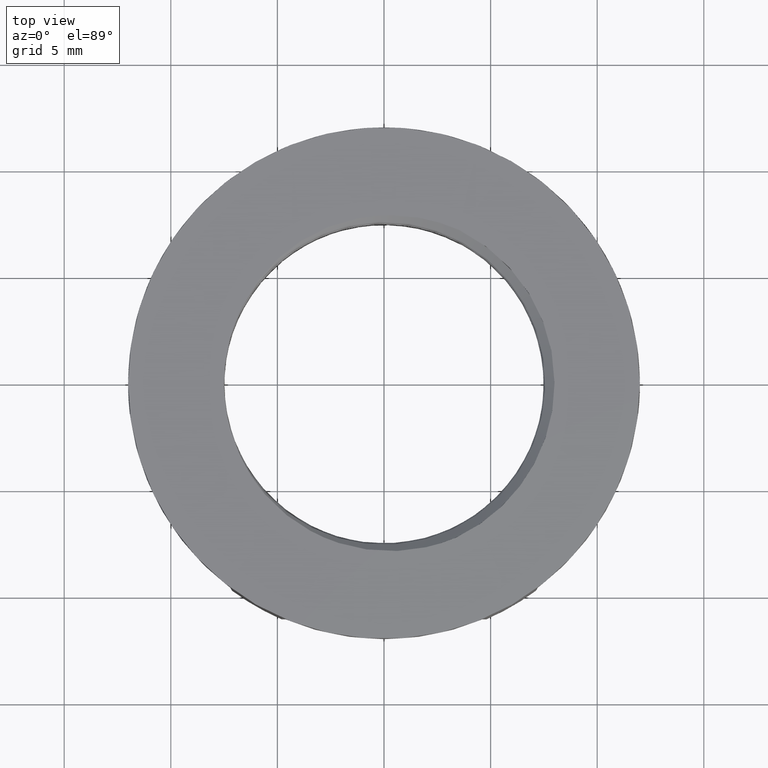
[diagram: clean part render]
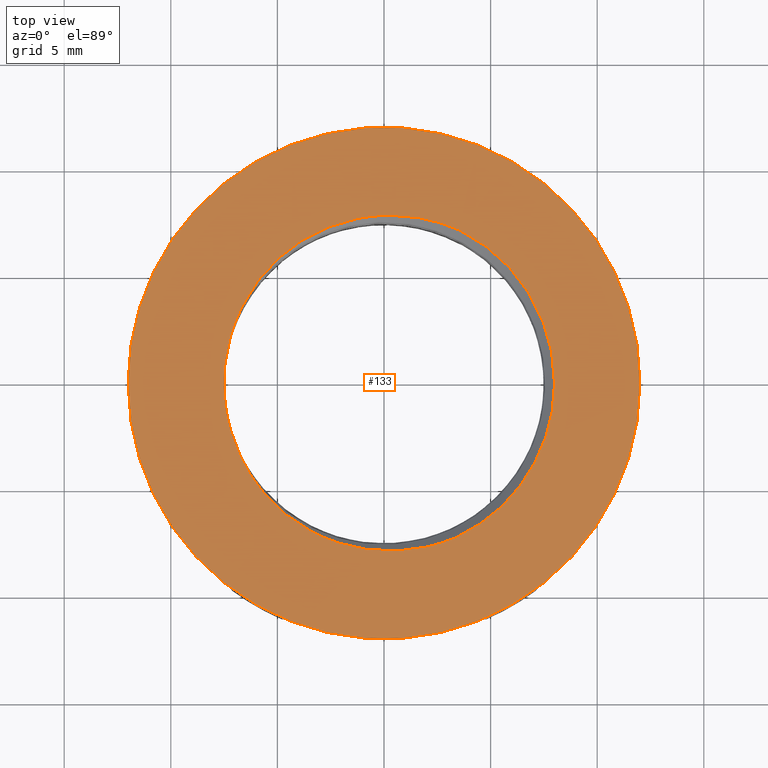
[diagram: same view with one face highlighted and labeled with its STEP entity id]
A machine part, top view. The second image highlights one B-rep face of the part: STEP entity #133.
In plain terms, the highlighted planar face has unit normal (0, 0, 1).
Its self-contained STEP definition (entity closure, byte-faithful):
#22 = AXIS2_PLACEMENT_3D ( 'NONE', #1744, #1770, #1753 ) ;
#35 = AXIS2_PLACEMENT_3D ( 'NONE', #539, #556, #579 ) ;
#41 = CIRCLE ( 'NONE', #58, 8.000000000000000000 ) ;
#53 = CIRCLE ( 'NONE', #35, 8.000000000000000000 ) ;
#58 = AXIS2_PLACEMENT_3D ( 'NONE', #433, #434, #432 ) ;
#67 = CIRCLE ( 'NONE', #71, 12.00000000000000200 ) ;
#71 = AXIS2_PLACEMENT_3D ( 'NONE', #581, #593, #611 ) ;
#80 = CIRCLE ( 'NONE', #96, 12.00000000000000200 ) ;
#96 = AXIS2_PLACEMENT_3D ( 'NONE', #638, #658, #647 ) ;
#133 = ADVANCED_FACE ( 'NONE', ( #1743, #1752 ), #1781, .T. ) ;
#168 = EDGE_CURVE ( 'NONE', #1516, #1528, #41, .T. ) ;
#199 = EDGE_CURVE ( 'NONE', #1528, #1514, #53, .T. ) ;
#207 = EDGE_CURVE ( 'NONE', #1520, #2502, #67, .T. ) ;
#220 = EDGE_CURVE ( 'NONE', #1500, #1526, #263, .T. ) ;
#221 = EDGE_CURVE ( 'NONE', #2502, #1520, #80, .T. ) ;
#223 = EDGE_CURVE ( 'NONE', #1502, #1505, #264, .T. ) ;
#232 = EDGE_CURVE ( 'NONE', #1526, #1502, #265, .T. ) ;
#239 = EDGE_CURVE ( 'NONE', #1516, #1500, #266, .T. ) ;
#240 = EDGE_CURVE ( 'NONE', #1505, #1514, #267, .T. ) ;
#263 = B_SPLINE_CURVE_WITH_KNOTS ( 'NONE', 3,
 ( #668, #649, #652, #664, #628, #653 ),
 .UNSPECIFIED., .F., .F.,
 ( 4, 2, 4 ),
 ( 0.0000000000000000000, 0.001454845113623707600, 0.002909690227247415300 ),
 .UNSPECIFIED. ) ;
#264 = B_SPLINE_CURVE_WITH_KNOTS ( 'NONE', 3,
 ( #663, #641, #674, #639 ),
 .UNSPECIFIED., .F., .F.,
 ( 4, 4 ),
 ( 0.0000000000000000000, 0.002837952616321730100 ),
 .UNSPECIFIED. ) ;
#265 = B_SPLINE_CURVE_WITH_KNOTS ( 'NONE', 3,
 ( #704, #692, #678, #690 ),
 .UNSPECIFIED., .F., .F.,
 ( 4, 4 ),
 ( 0.0000000000000000000, 0.001520176084877439700 ),
 .UNSPECIFIED. ) ;
#266 = B_SPLINE_CURVE_WITH_KNOTS ( 'NONE', 3,
 ( #697, #761, #780, #763, #764, #774, #747, #726, #727, #728, #819, #818, #795, #834, #809, #811, #796, #830, #797, #789, #793, #815, #831, #835 ),
 .UNSPECIFIED., .F., .F.,
 ( 4, 2, 2, 2, 2, 2, 2, 2, 2, 2, 2, 4 ),
 ( 0.007449147005863418000, 0.008945742665780616000, 0.009694040495739214600, 0.01044233832569781500, 0.01193893398561501200, 0.01343552964553220900, 0.01493212530544940500, 0.01568042313540800300, 0.01642872096536660300, 0.01792531662528380100, 0.01867361445524240100, 0.01942191228520099800 ),
 .UNSPECIFIED. ) ;
#267 = B_SPLINE_CURVE_WITH_KNOTS ( 'NONE', 3,
 ( #766, #777, #794, #825, #806, #790, #807, #812, #832, #808, #833, #829, #802, #803, #804, #800, #791, #820, #792, #798, #828, #826 ),
 .UNSPECIFIED., .F., .F.,
 ( 4, 2, 2, 2, 2, 2, 2, 2, 2, 2, 4 ),
 ( 0.0000000000000000000, 0.001494299387252017100, 0.002241449080878025600, 0.002988598774504034100, 0.004482898161756054600, 0.005977197549008076000, 0.006724347242634086700, 0.007471496936260098300, 0.008965796323512119700, 0.01046009571076414500, 0.01195439509801616800 ),
 .UNSPECIFIED. ) ;
#432 = DIRECTION ( 'NONE',  ( 1.000000000000000000, 0.0000000000000000000, 0.0000000000000000000 ) ) ;
#433 = CARTESIAN_POINT ( 'NONE',  ( 0.0000000000000000000, 0.0000000000000000000, 5.000000000000000000 ) ) ;
#434 = DIRECTION ( 'NONE',  ( 0.0000000000000000000, 0.0000000000000000000, 1.000000000000000000 ) ) ;
#539 = CARTESIAN_POINT ( 'NONE',  ( 0.0000000000000000000, 0.0000000000000000000, 5.000000000000000000 ) ) ;
#556 = DIRECTION ( 'NONE',  ( 0.0000000000000000000, 0.0000000000000000000, 1.000000000000000000 ) ) ;
#579 = DIRECTION ( 'NONE',  ( 1.000000000000000000, 0.0000000000000000000, 0.0000000000000000000 ) ) ;
#581 = CARTESIAN_POINT ( 'NONE',  ( 0.0000000000000000000, 0.0000000000000000000, 5.000000000000000000 ) ) ;
#593 = DIRECTION ( 'NONE',  ( 0.0000000000000000000, 0.0000000000000000000, 1.000000000000000000 ) ) ;
#611 = DIRECTION ( 'NONE',  ( 1.000000000000000000, 0.0000000000000000000, 0.0000000000000000000 ) ) ;
#628 = CARTESIAN_POINT ( 'NONE',  ( -7.444845223493585400, -1.129217231327634500, 5.000000000000000000 ) ) ;
#638 = CARTESIAN_POINT ( 'NONE',  ( 0.0000000000000000000, 0.0000000000000000000, 5.000000000000000000 ) ) ;
#639 = CARTESIAN_POINT ( 'NONE',  ( -6.663176727616987100, 3.578586390593257300, 5.000000000000000000 ) ) ;
#641 = CARTESIAN_POINT ( 'NONE',  ( -7.356353782312829100, 1.811944159452640200, 5.000000000000000000 ) ) ;
#647 = DIRECTION ( 'NONE',  ( 1.000000000000000000, 0.0000000000000000000, 0.0000000000000000000 ) ) ;
#649 = CARTESIAN_POINT ( 'NONE',  ( -6.940045369251771800, -2.999483780227786900, 4.999999999999999100 ) ) ;
#652 = CARTESIAN_POINT ( 'NONE',  ( -7.108812237055226500, -2.543432879244636300, 5.000000000000055100 ) ) ;
#653 = CARTESIAN_POINT ( 'NONE',  ( -7.483984686393998100, -0.6457537763357736900, 5.000000000000000000 ) ) ;
#658 = DIRECTION ( 'NONE',  ( 0.0000000000000000000, 0.0000000000000000000, 1.000000000000000000 ) ) ;
#663 = CARTESIAN_POINT ( 'NONE',  ( -7.461045835117770000, 0.8716735413666048000, 5.000000000000000000 ) ) ;
#664 = CARTESIAN_POINT ( 'NONE',  ( -7.361174276950841900, -1.608135985974618700, 5.000000000000054200 ) ) ;
#668 = CARTESIAN_POINT ( 'NONE',  ( -6.736039356138998200, -3.439474777657888000, 5.000000000000000000 ) ) ;
#674 = CARTESIAN_POINT ( 'NONE',  ( -7.080434049718051300, 2.729537074578624300, 4.999999999999985800 ) ) ;
#678 = CARTESIAN_POINT ( 'NONE',  ( -7.517120837365331100, 0.3680491624565347400, 5.000000000000000000 ) ) ;
#690 = CARTESIAN_POINT ( 'NONE',  ( -7.461045835117770000, 0.8716735413666048000, 5.000000000000000000 ) ) ;
#692 = CARTESIAN_POINT ( 'NONE',  ( -7.524874790316241400, -0.1406709024057081800, 5.000000000000000000 ) ) ;
#697 = CARTESIAN_POINT ( 'NONE',  ( 3.380397377103104600, -7.250718141872256200, 5.000000000000000900 ) ) ;
#704 = CARTESIAN_POINT ( 'NONE',  ( -7.483984686393998100, -0.6457537763357736900, 5.000000000000000000 ) ) ;
#726 = CARTESIAN_POINT ( 'NONE',  ( -0.02113457311991283700, -7.892987881900662500, 5.000000000000001800 ) ) ;
#727 = CARTESIAN_POINT ( 'NONE',  ( -0.5154500681739552200, -7.857649201061852800, 4.999999999999999100 ) ) ;
#728 = CARTESIAN_POINT ( 'NONE',  ( -1.493976001695340700, -7.693989080043779800, 4.999999999999998200 ) ) ;
#747 = CARTESIAN_POINT ( 'NONE',  ( 0.7280813151640759300, -7.874751120325229600, 5.000000000000000000 ) ) ;
#761 = CARTESIAN_POINT ( 'NONE',  ( 2.918137280282340700, -7.446508930559772000, 4.999999999999998200 ) ) ;
#763 = CARTESIAN_POINT ( 'NONE',  ( 1.719162260954199200, -7.755258668475802300, 4.999999999999998200 ) ) ;
#764 = CARTESIAN_POINT ( 'NONE',  ( 1.474511388444287300, -7.796752592532356200, 5.000000000000001800 ) ) ;
#766 = CARTESIAN_POINT ( 'NONE',  ( -6.663176727616987100, 3.578586390593257300, 5.000000000000000000 ) ) ;
#774 = CARTESIAN_POINT ( 'NONE',  ( 0.9796416312068494400, -7.856513744303824400, 5.000000000000001800 ) ) ;
#777 = CARTESIAN_POINT ( 'NONE',  ( -6.441715338343580100, 4.029223518156199700, 4.999999999999999100 ) ) ;
#780 = CARTESIAN_POINT ( 'NONE',  ( 2.444923655188406800, -7.596607600565005400, 5.000000000000000000 ) ) ;
#789 = CARTESIAN_POINT ( 'NONE',  ( -6.120665605493872600, -4.531189356865803000, 5.000000000000001800 ) ) ;
#790 = CARTESIAN_POINT ( 'NONE',  ( -5.220843251538282100, 5.604725841719527100, 5.000000000000000000 ) ) ;
#791 = CARTESIAN_POINT ( 'NONE',  ( 0.1386023656146461400, 7.888210674467736700, 5.000000000000000000 ) ) ;
#792 = CARTESIAN_POINT ( 'NONE',  ( 1.631023604945458900, 7.775346704339138900, 5.000000000000002700 ) ) ;
#793 = CARTESIAN_POINT ( 'NONE',  ( -6.259245378709978900, -4.320789143092509800, 5.000000000000000000 ) ) ;
#794 = CARTESIAN_POINT ( 'NONE',  ( -6.178553766190852900, 4.452341858437069500, 5.000000000000000900 ) ) ;
#795 = CARTESIAN_POINT ( 'NONE',  ( -3.361175542009774600, -6.999415194475302500, 5.000000000000000000 ) ) ;
#796 = CARTESIAN_POINT ( 'NONE',  ( -4.798652972574292800, -6.009647844926909100, 4.999999999999998200 ) ) ;
#797 = CARTESIAN_POINT ( 'NONE',  ( -5.677123663725812900, -5.137178216354779900, 5.000000000000000900 ) ) ;
#798 = CARTESIAN_POINT ( 'NONE',  ( 2.596648578336397100, 7.546339260335670000, 5.000000000000004400 ) ) ;
#800 = CARTESIAN_POINT ( 'NONE',  ( -0.3559784209332202400, 7.863382788562574900, 4.999999999999998200 ) ) ;
#802 = CARTESIAN_POINT ( 'NONE',  ( -1.827484762777505500, 7.589050313831432200, 5.000000000000000000 ) ) ;
#803 = CARTESIAN_POINT ( 'NONE',  ( -1.343365395360739600, 7.707358856728076200, 5.000000000000000000 ) ) ;
#804 = CARTESIAN_POINT ( 'NONE',  ( -1.096089679309719000, 7.755491080426887500, 4.999999999999999100 ) ) ;
#806 = CARTESIAN_POINT ( 'NONE',  ( -5.561124877360878600, 5.239778408005762800, 5.000000000000000900 ) ) ;
#807 = CARTESIAN_POINT ( 'NONE',  ( -5.042889040591265200, 5.777791051890242000, 5.000000000000000000 ) ) ;
#808 = CARTESIAN_POINT ( 'NONE',  ( -3.218548118005169800, 7.067149791388067600, 4.999999999999997300 ) ) ;
#809 = CARTESIAN_POINT ( 'NONE',  ( -4.207540638302366400, -6.469891748706196200, 4.999999999999999100 ) ) ;
#811 = CARTESIAN_POINT ( 'NONE',  ( -4.607519098872729500, -6.168893023760262800, 4.999999999999997300 ) ) ;
#812 = CARTESIAN_POINT ( 'NONE',  ( -4.486118919905276700, 6.269402620824112500, 5.000000000000000900 ) ) ;
#815 = CARTESIAN_POINT ( 'NONE',  ( -6.513753732184320600, -3.889360533429889100, 5.000000000000000000 ) ) ;
#818 = CARTESIAN_POINT ( 'NONE',  ( -2.915433473454930500, -7.215728835449159100, 5.000000000000000000 ) ) ;
#819 = CARTESIAN_POINT ( 'NONE',  ( -1.983051722891422200, -7.563351686247499700, 5.000000000000000000 ) ) ;
#820 = CARTESIAN_POINT ( 'NONE',  ( 1.130076758108182500, 7.845021159527831000, 5.000000000000000000 ) ) ;
#825 = CARTESIAN_POINT ( 'NONE',  ( -5.723715608421681400, 5.047360945084203200, 5.000000000000001800 ) ) ;
#826 = CARTESIAN_POINT ( 'NONE',  ( 3.519735913891117700, 7.184111573219410300, 5.000000000000000900 ) ) ;
#828 = CARTESIAN_POINT ( 'NONE',  ( 3.065328810608945800, 7.387575855245790600, 5.000000000000001800 ) ) ;
#829 = CARTESIAN_POINT ( 'NONE',  ( -2.065453477399295900, 7.518901917492692100, 5.000000000000000000 ) ) ;
#830 = CARTESIAN_POINT ( 'NONE',  ( -5.346239580676456900, -5.506416625567496200, 5.000000000000000900 ) ) ;
#831 = CARTESIAN_POINT ( 'NONE',  ( -6.630305831619591700, -3.667516089799856900, 5.000000000000003600 ) ) ;
#832 = CARTESIAN_POINT ( 'NONE',  ( -4.084614968718868000, 6.560629164485223300, 4.999999999999998200 ) ) ;
#833 = CARTESIAN_POINT ( 'NONE',  ( -2.766820792104574000, 7.274759711743078200, 4.999999999999999100 ) ) ;
#834 = CARTESIAN_POINT ( 'NONE',  ( -3.999061223344074100, -6.611078732909906100, 5.000000000000000900 ) ) ;
#835 = CARTESIAN_POINT ( 'NONE',  ( -6.736039356138998200, -3.439474777657888000, 5.000000000000000000 ) ) ;
#1500 = VERTEX_POINT ( 'NONE', #2587 ) ;
#1502 = VERTEX_POINT ( 'NONE', #2576 ) ;
#1505 = VERTEX_POINT ( 'NONE', #2594 ) ;
#1514 = VERTEX_POINT ( 'NONE', #2621 ) ;
#1516 = VERTEX_POINT ( 'NONE', #2616 ) ;
#1520 = VERTEX_POINT ( 'NONE', #2637 ) ;
#1526 = VERTEX_POINT ( 'NONE', #2617 ) ;
#1528 = VERTEX_POINT ( 'NONE', #2645 ) ;
#1620 = ORIENTED_EDGE ( 'NONE', *, *, #199, .F. ) ;
#1629 = ORIENTED_EDGE ( 'NONE', *, *, #223, .T. ) ;
#1635 = ORIENTED_EDGE ( 'NONE', *, *, #221, .T. ) ;
#1637 = ORIENTED_EDGE ( 'NONE', *, *, #239, .T. ) ;
#1658 = ORIENTED_EDGE ( 'NONE', *, *, #168, .F. ) ;
#1663 = ORIENTED_EDGE ( 'NONE', *, *, #240, .T. ) ;
#1672 = EDGE_LOOP ( 'NONE', ( #1663, #1620, #1658, #1637, #1685, #1713, #1629 ) ) ;
#1675 = ORIENTED_EDGE ( 'NONE', *, *, #207, .T. ) ;
#1685 = ORIENTED_EDGE ( 'NONE', *, *, #220, .T. ) ;
#1703 = EDGE_LOOP ( 'NONE', ( #1635, #1675 ) ) ;
#1713 = ORIENTED_EDGE ( 'NONE', *, *, #232, .T. ) ;
#1743 = FACE_BOUND ( 'NONE', #1672, .T. ) ;
#1744 = CARTESIAN_POINT ( 'NONE',  ( 12.70170592217177100, -3.963370048831593200E-014, 5.000000000000000000 ) ) ;
#1752 = FACE_OUTER_BOUND ( 'NONE', #1703, .T. ) ;
#1753 = DIRECTION ( 'NONE',  ( 1.000000000000000000, 0.0000000000000000000, -0.0000000000000000000 ) ) ;
#1770 = DIRECTION ( 'NONE',  ( 0.0000000000000000000, 0.0000000000000000000, 1.000000000000000000 ) ) ;
#1781 = PLANE ( 'NONE',  #22 ) ;
#2502 = VERTEX_POINT ( 'NONE', #2646 ) ;
#2576 = CARTESIAN_POINT ( 'NONE',  ( -7.461045835117770000, 0.8716735413666048000, 5.000000000000000000 ) ) ;
#2587 = CARTESIAN_POINT ( 'NONE',  ( -6.736039356138998200, -3.439474777657888000, 5.000000000000000000 ) ) ;
#2594 = CARTESIAN_POINT ( 'NONE',  ( -6.663176727616987100, 3.578586390593257300, 5.000000000000000000 ) ) ;
#2616 = CARTESIAN_POINT ( 'NONE',  ( 3.380397377103104600, -7.250718141872256200, 5.000000000000000900 ) ) ;
#2617 = CARTESIAN_POINT ( 'NONE',  ( -7.483984686393998100, -0.6457537763357736900, 5.000000000000000000 ) ) ;
#2621 = CARTESIAN_POINT ( 'NONE',  ( 3.519735913891117700, 7.184111573219410300, 5.000000000000000900 ) ) ;
#2637 = CARTESIAN_POINT ( 'NONE',  ( -12.00000000000000200, 1.469576158976824100E-015, 5.000000000000000000 ) ) ;
#2645 = CARTESIAN_POINT ( 'NONE',  ( 8.000000000000000000, 9.797174393178825700E-016, 5.000000000000000000 ) ) ;
#2646 = CARTESIAN_POINT ( 'NONE',  ( 12.00000000000000200, 0.0000000000000000000, 5.000000000000000000 ) ) ;